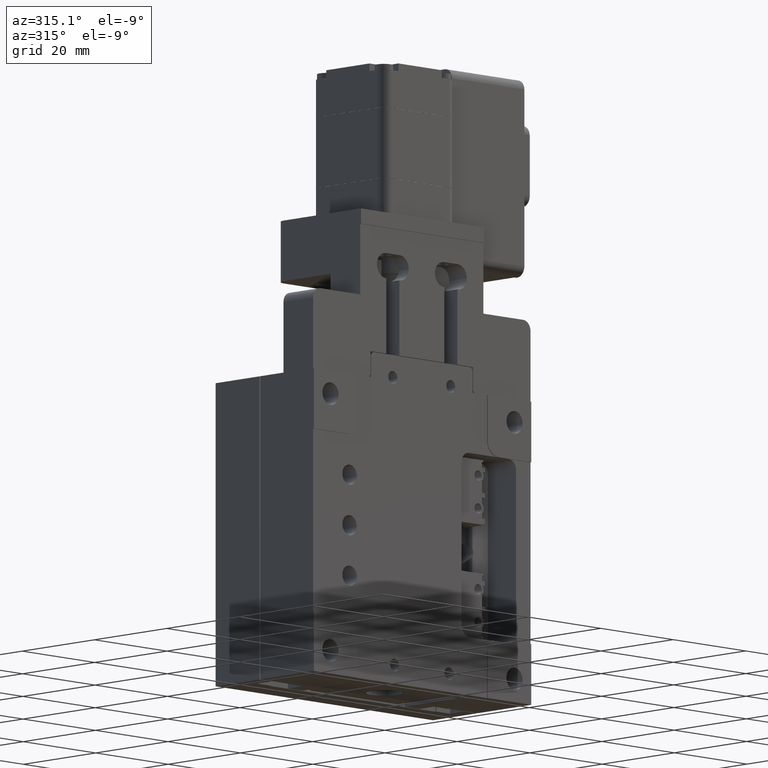
[diagram: clean part render]
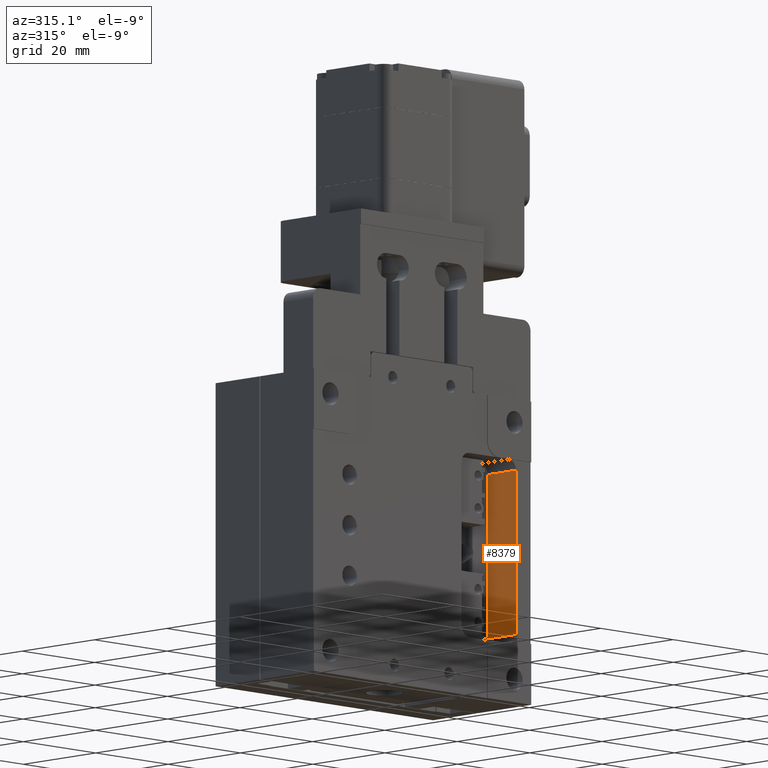
[diagram: same view with one face highlighted and labeled with its STEP entity id]
A machine part, auxiliary view. The second image highlights one B-rep face of the part: STEP entity #8379.
In plain terms, the highlighted planar face has unit normal (1, -0, 0).
Its self-contained STEP definition (entity closure, byte-faithful):
#479 = VECTOR ( 'NONE', #17941, 1000.000000000000000 ) ;
#2809 = CARTESIAN_POINT ( 'NONE',  ( 23.40828040119247800, -12.89818754598603000, 46.00000000000000000 ) ) ;
#4595 = DIRECTION ( 'NONE',  ( 0.0000000000000000000, 0.0000000000000000000, -1.000000000000000000 ) ) ;
#4901 = AXIS2_PLACEMENT_3D ( 'NONE', #8206, #15251, #4595 ) ;
#5697 = LINE ( 'NONE', #18028, #18707 ) ;
#5959 = LINE ( 'NONE', #19953, #479 ) ;
#6735 = LINE ( 'NONE', #14566, #10601 ) ;
#7513 = LINE ( 'NONE', #7534, #21082 ) ;
#7534 = CARTESIAN_POINT ( 'NONE',  ( 23.40828040119247800, -5.098187545986029100, 78.50000000000000000 ) ) ;
#8206 = CARTESIAN_POINT ( 'NONE',  ( 23.40828040119247800, -5.098187545986029100, 78.50000000000000000 ) ) ;
#8379 = ADVANCED_FACE ( 'NONE', ( #21143 ), #15168, .F. ) ;
#9326 = VERTEX_POINT ( 'NONE', #13859 ) ;
#9442 = ORIENTED_EDGE ( 'NONE', *, *, #13860, .F. ) ;
#9611 = EDGE_CURVE ( 'NONE', #14009, #16213, #7513, .T. ) ;
#10011 = EDGE_LOOP ( 'NONE', ( #10649, #14910, #14979, #9442 ) ) ;
#10601 = VECTOR ( 'NONE', #14725, 1000.000000000000000 ) ;
#10649 = ORIENTED_EDGE ( 'NONE', *, *, #15311, .F. ) ;
#10956 = DIRECTION ( 'NONE',  ( 0.0000000000000000000, 0.0000000000000000000, -1.000000000000000000 ) ) ;
#13859 = CARTESIAN_POINT ( 'NONE',  ( 23.40828040119247800, -12.89818754598603000, 78.50000000000000000 ) ) ;
#13860 = EDGE_CURVE ( 'NONE', #9326, #20367, #5697, .T. ) ;
#14009 = VERTEX_POINT ( 'NONE', #21023 ) ;
#14566 = CARTESIAN_POINT ( 'NONE',  ( 23.40828040119247800, -5.098187545986029100, 46.00000000000000000 ) ) ;
#14725 = DIRECTION ( 'NONE',  ( -0.0000000000000000000, -1.000000000000000000, -0.0000000000000000000 ) ) ;
#14910 = ORIENTED_EDGE ( 'NONE', *, *, #9611, .F. ) ;
#14979 = ORIENTED_EDGE ( 'NONE', *, *, #17293, .T. ) ;
#15168 = PLANE ( 'NONE',  #4901 ) ;
#15251 = DIRECTION ( 'NONE',  ( 1.000000000000000000, -0.0000000000000000000, 0.0000000000000000000 ) ) ;
#15311 = EDGE_CURVE ( 'NONE', #16213, #9326, #5959, .T. ) ;
#16213 = VERTEX_POINT ( 'NONE', #17323 ) ;
#17293 = EDGE_CURVE ( 'NONE', #14009, #20367, #6735, .T. ) ;
#17323 = CARTESIAN_POINT ( 'NONE',  ( 23.40828040119247800, -5.098187545986029100, 78.50000000000000000 ) ) ;
#17941 = DIRECTION ( 'NONE',  ( -0.0000000000000000000, -1.000000000000000000, -0.0000000000000000000 ) ) ;
#18028 = CARTESIAN_POINT ( 'NONE',  ( 23.40828040119247800, -12.89818754598603000, 62.50000000000000000 ) ) ;
#18707 = VECTOR ( 'NONE', #10956, 1000.000000000000000 ) ;
#19953 = CARTESIAN_POINT ( 'NONE',  ( 23.40828040119247800, -5.098187545986029100, 78.50000000000000000 ) ) ;
#20367 = VERTEX_POINT ( 'NONE', #2809 ) ;
#21023 = CARTESIAN_POINT ( 'NONE',  ( 23.40828040119247800, -5.098187545986029100, 46.00000000000000000 ) ) ;
#21082 = VECTOR ( 'NONE', #21612, 1000.000000000000000 ) ;
#21143 = FACE_OUTER_BOUND ( 'NONE', #10011, .T. ) ;
#21612 = DIRECTION ( 'NONE',  ( -0.0000000000000000000, -0.0000000000000000000, 1.000000000000000000 ) ) ;